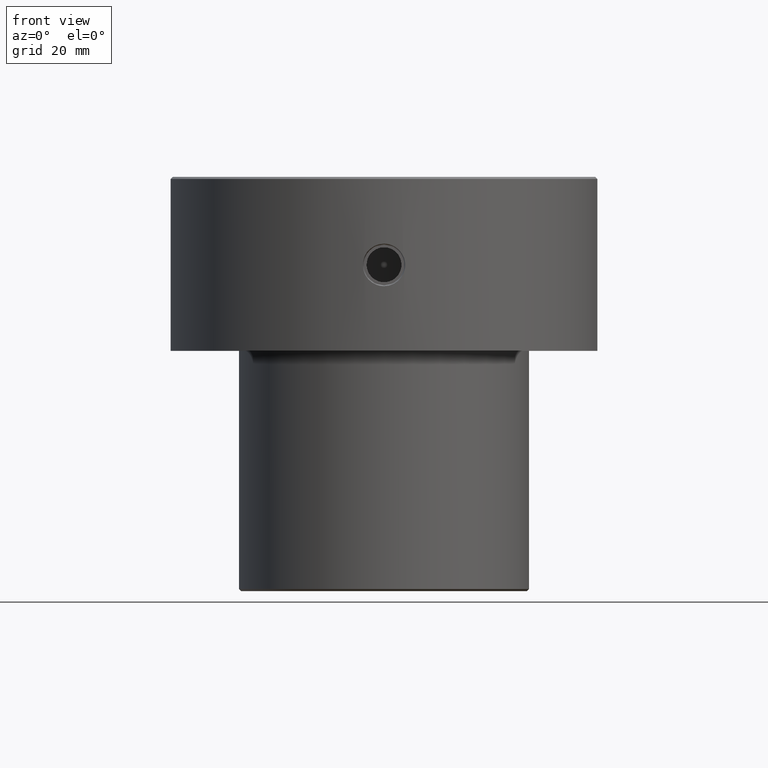
[diagram: clean part render]
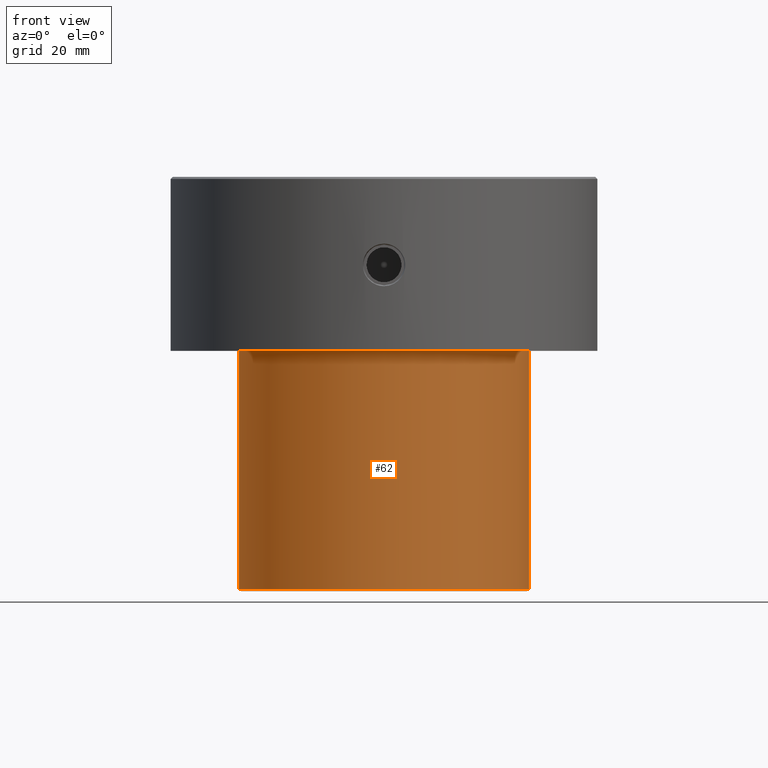
[diagram: same view with one face highlighted and labeled with its STEP entity id]
A machine part, front view. The second image highlights one B-rep face of the part: STEP entity #62.
In plain terms, the highlighted cylindrical surface (partial cylindrical patch) has radius 35 mm, axis along (-0, -0, 1).
Its self-contained STEP definition (entity closure, byte-faithful):
#23 = DIRECTION ( 'NONE',  ( -0.000000000000000000, -0.000000000000000000, 1.000000000000000000 ) ) ;
#42 = VERTEX_POINT ( 'NONE', #873 ) ;
#62 = ADVANCED_FACE ( 'NONE', ( #650 ), #855, .T. ) ;
#88 = CARTESIAN_POINT ( 'NONE',  ( 0.000000000000000000, 0.000000000000000000, 0.000000000000000000 ) ) ;
#210 = ORIENTED_EDGE ( 'NONE', *, *, #314, .F. ) ;
#223 = CARTESIAN_POINT ( 'NONE',  ( 0.000000000000000000, 0.000000000000000000, -42.00000000000000000 ) ) ;
#237 = ORIENTED_EDGE ( 'NONE', *, *, #547, .T. ) ;
#253 = ORIENTED_EDGE ( 'NONE', *, *, #1141, .T. ) ;
#265 = DIRECTION ( 'NONE',  ( 1.000000000000000000, 0.000000000000000000, 0.000000000000000000 ) ) ;
#314 = EDGE_CURVE ( 'NONE', #726, #395, #902, .T. ) ;
#365 = CARTESIAN_POINT ( 'NONE',  ( 0.000000000000000000, 0.000000000000000000, -99.50000000000004263 ) ) ;
#395 = VERTEX_POINT ( 'NONE', #629 ) ;
#428 = VERTEX_POINT ( 'NONE', #1114 ) ;
#431 = EDGE_LOOP ( 'NONE', ( #587, #253, #237, #210 ) ) ;
#449 = LINE ( 'NONE', #737, #608 ) ;
#515 = EDGE_CURVE ( 'NONE', #428, #726, #449, .T. ) ;
#547 = EDGE_CURVE ( 'NONE', #42, #395, #716, .T. ) ;
#561 = AXIS2_PLACEMENT_3D ( 'NONE', #88, #1073, #265 ) ;
#570 = AXIS2_PLACEMENT_3D ( 'NONE', #365, #754, #646 ) ;
#587 = ORIENTED_EDGE ( 'NONE', *, *, #515, .F. ) ;
#608 = VECTOR ( 'NONE', #931, 1000.000000000000000 ) ;
#629 = CARTESIAN_POINT ( 'NONE',  ( 35.00000000000000000, 0.000000000000000000, -42.00000000000000000 ) ) ;
#646 = DIRECTION ( 'NONE',  ( -1.000000000000000000, 0.000000000000000000, 0.000000000000000000 ) ) ;
#650 = FACE_OUTER_BOUND ( 'NONE', #431, .T. ) ;
#716 = LINE ( 'NONE', #1018, #1029 ) ;
#720 = CIRCLE ( 'NONE', #570, 35.00000000000000000 ) ;
#726 = VERTEX_POINT ( 'NONE', #1128 ) ;
#737 = CARTESIAN_POINT ( 'NONE',  ( -35.00000000000000000, 4.286263797015736496E-15, 0.000000000000000000 ) ) ;
#754 = DIRECTION ( 'NONE',  ( -0.000000000000000000, -0.000000000000000000, 1.000000000000000000 ) ) ;
#855 = CYLINDRICAL_SURFACE ( 'NONE', #561, 35.00000000000000000 ) ;
#873 = CARTESIAN_POINT ( 'NONE',  ( 35.00000000000000000, 0.000000000000000000, -99.50000000000004263 ) ) ;
#902 = CIRCLE ( 'NONE', #942, 35.00000000000000000 ) ;
#931 = DIRECTION ( 'NONE',  ( -0.000000000000000000, -0.000000000000000000, 1.000000000000000000 ) ) ;
#942 = AXIS2_PLACEMENT_3D ( 'NONE', #223, #23, #1188 ) ;
#1005 = DIRECTION ( 'NONE',  ( -0.000000000000000000, -0.000000000000000000, 1.000000000000000000 ) ) ;
#1018 = CARTESIAN_POINT ( 'NONE',  ( 35.00000000000000000, 0.000000000000000000, 0.000000000000000000 ) ) ;
#1029 = VECTOR ( 'NONE', #1005, 1000.000000000000000 ) ;
#1073 = DIRECTION ( 'NONE',  ( -0.000000000000000000, -0.000000000000000000, 1.000000000000000000 ) ) ;
#1114 = CARTESIAN_POINT ( 'NONE',  ( -35.00000000000000000, 4.286263797015736496E-15, -99.50000000000004263 ) ) ;
#1128 = CARTESIAN_POINT ( 'NONE',  ( -35.00000000000000000, 4.286263797015736496E-15, -42.00000000000000000 ) ) ;
#1141 = EDGE_CURVE ( 'NONE', #428, #42, #720, .T. ) ;
#1188 = DIRECTION ( 'NONE',  ( 1.000000000000000000, 0.000000000000000000, 0.000000000000000000 ) ) ;